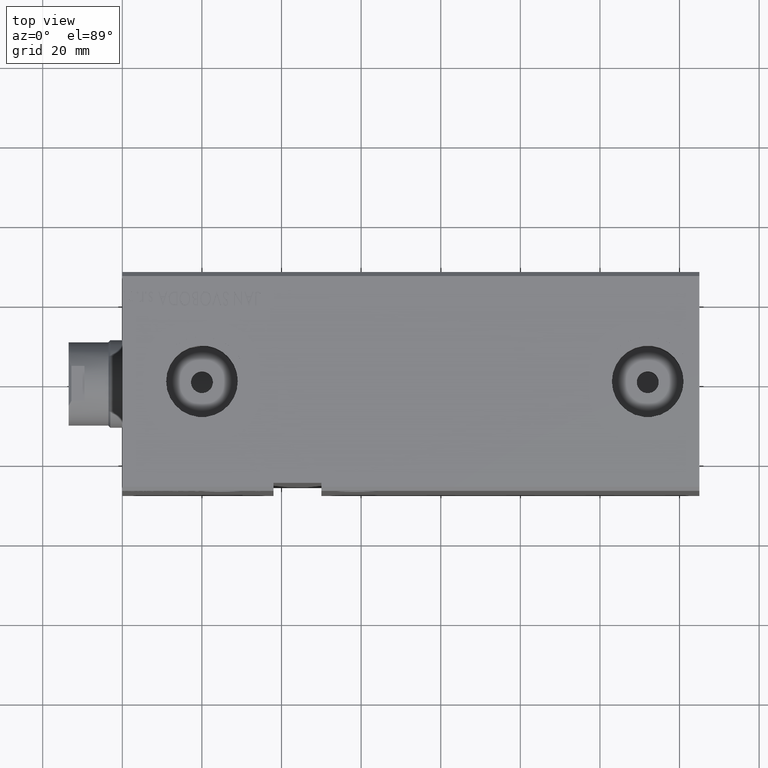
[diagram: clean part render]
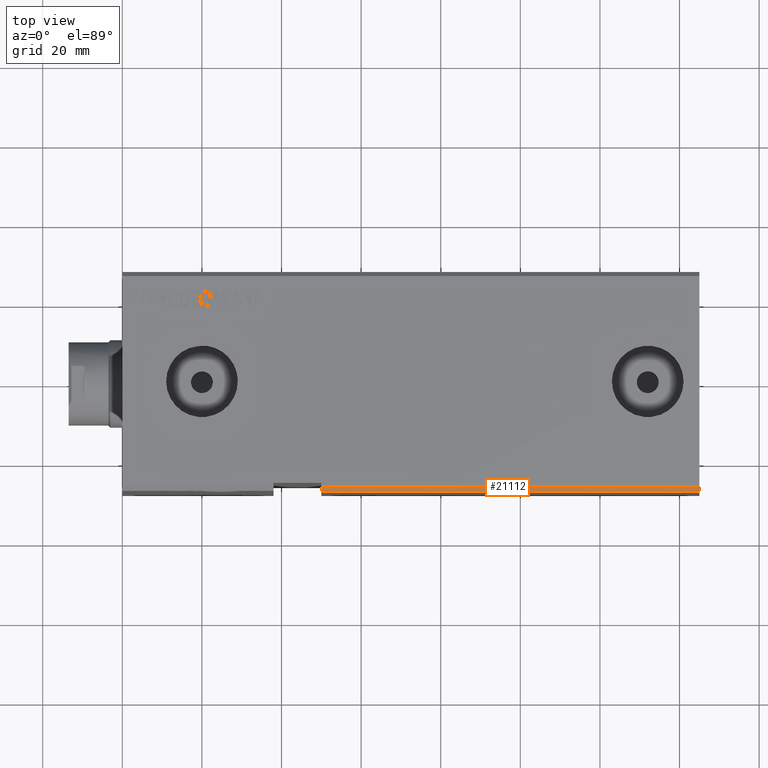
[diagram: same view with one face highlighted and labeled with its STEP entity id]
A machine part, top view. The second image highlights one B-rep face of the part: STEP entity #21112.
In plain terms, the highlighted planar face has unit normal (0, 0.7071, -0.7071).
Its self-contained STEP definition (entity closure, byte-faithful):
#448 = DIRECTION ( 'NONE',  ( -1.000000000000000000, -0.000000000000000000, -0.000000000000000000 ) ) ;
#2441 = EDGE_CURVE ( 'NONE', #2776, #32213, #31187, .T. ) ;
#2776 = VERTEX_POINT ( 'NONE', #31387 ) ;
#3304 = CARTESIAN_POINT ( 'NONE',  ( 145.0000000000000000, -26.50000000000000711, 37.50000000000000711 ) ) ;
#5860 = EDGE_CURVE ( 'NONE', #2776, #36713, #40221, .T. ) ;
#6816 = DIRECTION ( 'NONE',  ( 0.000000000000000000, -0.7071067811865474617, -0.7071067811865474617 ) ) ;
#10211 = LINE ( 'NONE', #16322, #14786 ) ;
#10527 = CARTESIAN_POINT ( 'NONE',  ( 145.0000000000000000, -26.50000000000000711, 37.50000000000000711 ) ) ;
#13208 = ORIENTED_EDGE ( 'NONE', *, *, #30484, .F. ) ;
#13672 = DIRECTION ( 'NONE',  ( 0.000000000000000000, -0.7071067811865474617, -0.7071067811865474617 ) ) ;
#14052 = EDGE_LOOP ( 'NONE', ( #14727, #23349, #13208, #40006 ) ) ;
#14727 = ORIENTED_EDGE ( 'NONE', *, *, #2441, .T. ) ;
#14786 = VECTOR ( 'NONE', #34838, 1000.000000000000000 ) ;
#16322 = CARTESIAN_POINT ( 'NONE',  ( 145.0000000000000000, -27.50000000000000711, 36.50000000000000711 ) ) ;
#19835 = CARTESIAN_POINT ( 'NONE',  ( 49.99999999999999289, -27.50000000000000711, 36.50000000000000711 ) ) ;
#20196 = LINE ( 'NONE', #35433, #29890 ) ;
#21034 = AXIS2_PLACEMENT_3D ( 'NONE', #10527, #26201, #39214 ) ;
#21112 = ADVANCED_FACE ( 'NONE', ( #32903 ), #29851, .F. ) ;
#22291 = CARTESIAN_POINT ( 'NONE',  ( 145.0000000000000000, -26.50000000000000711, 37.50000000000000711 ) ) ;
#23141 = VECTOR ( 'NONE', #6816, 1000.000000000000114 ) ;
#23349 = ORIENTED_EDGE ( 'NONE', *, *, #36895, .T. ) ;
#25703 = VERTEX_POINT ( 'NONE', #19835 ) ;
#26201 = DIRECTION ( 'NONE',  ( 0.000000000000000000, 0.7071067811865475727, -0.7071067811865475727 ) ) ;
#26978 = VECTOR ( 'NONE', #448, 1000.000000000000000 ) ;
#27314 = CARTESIAN_POINT ( 'NONE',  ( 145.0000000000000000, -27.50000000000000711, 36.50000000000000711 ) ) ;
#29851 = PLANE ( 'NONE',  #21034 ) ;
#29890 = VECTOR ( 'NONE', #13672, 1000.000000000000114 ) ;
#30484 = EDGE_CURVE ( 'NONE', #36713, #25703, #10211, .T. ) ;
#31187 = LINE ( 'NONE', #3304, #26978 ) ;
#31387 = CARTESIAN_POINT ( 'NONE',  ( 145.0000000000000000, -26.50000000000000711, 37.50000000000000711 ) ) ;
#32213 = VERTEX_POINT ( 'NONE', #33114 ) ;
#32903 = FACE_OUTER_BOUND ( 'NONE', #14052, .T. ) ;
#33114 = CARTESIAN_POINT ( 'NONE',  ( 49.99999999999999289, -26.50000000000000711, 37.50000000000000711 ) ) ;
#34838 = DIRECTION ( 'NONE',  ( -1.000000000000000000, -0.000000000000000000, -0.000000000000000000 ) ) ;
#35433 = CARTESIAN_POINT ( 'NONE',  ( 49.99999999999998579, -26.50000000000000711, 37.50000000000000711 ) ) ;
#36713 = VERTEX_POINT ( 'NONE', #27314 ) ;
#36895 = EDGE_CURVE ( 'NONE', #32213, #25703, #20196, .T. ) ;
#39214 = DIRECTION ( 'NONE',  ( 0.000000000000000000, 0.7071067811865474617, 0.7071067811865474617 ) ) ;
#40006 = ORIENTED_EDGE ( 'NONE', *, *, #5860, .F. ) ;
#40221 = LINE ( 'NONE', #22291, #23141 ) ;